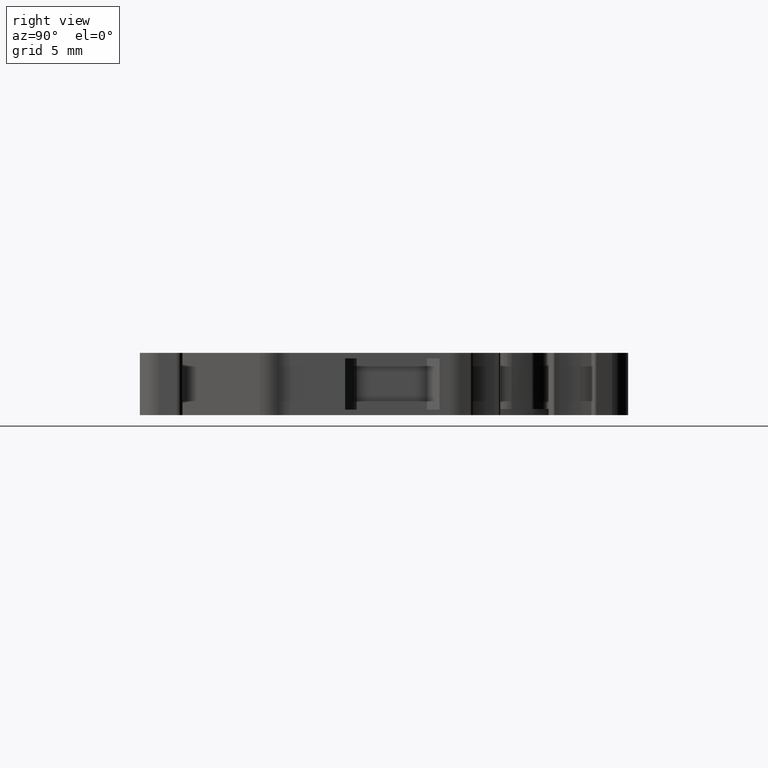
[diagram: clean part render]
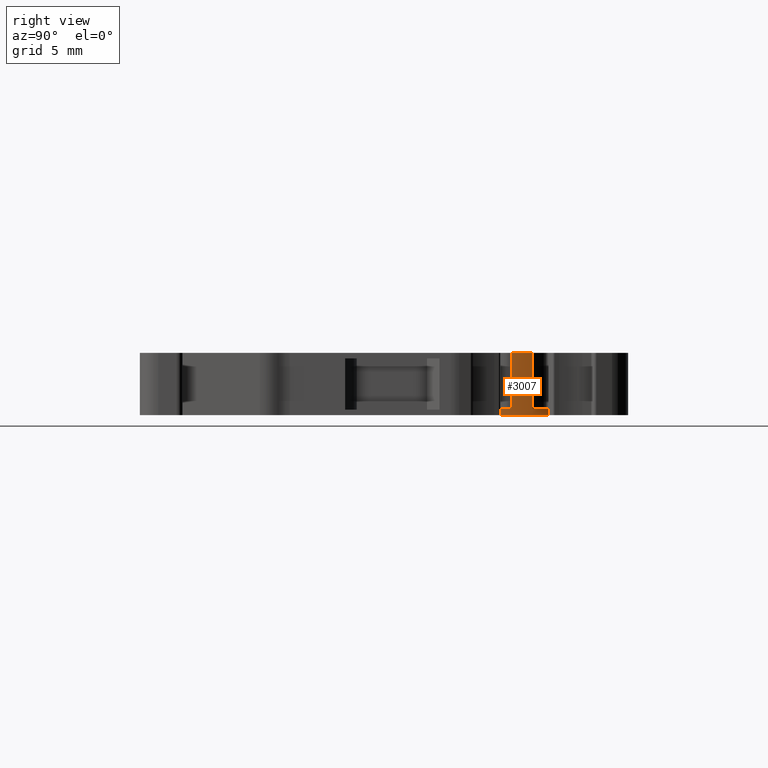
[diagram: same view with one face highlighted and labeled with its STEP entity id]
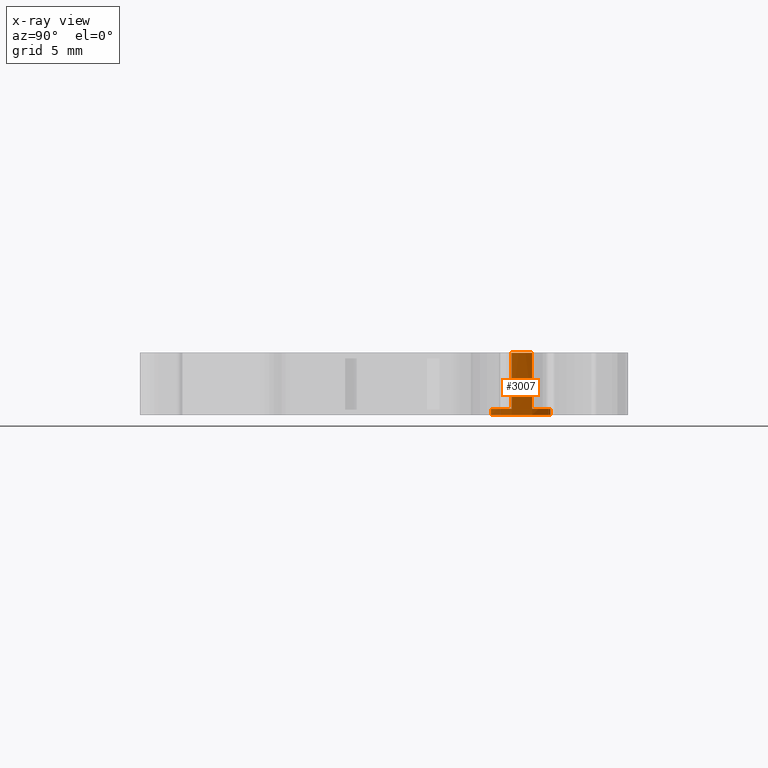
[diagram: x-ray of the same camera — body ghosted, the highlighted face saturated]
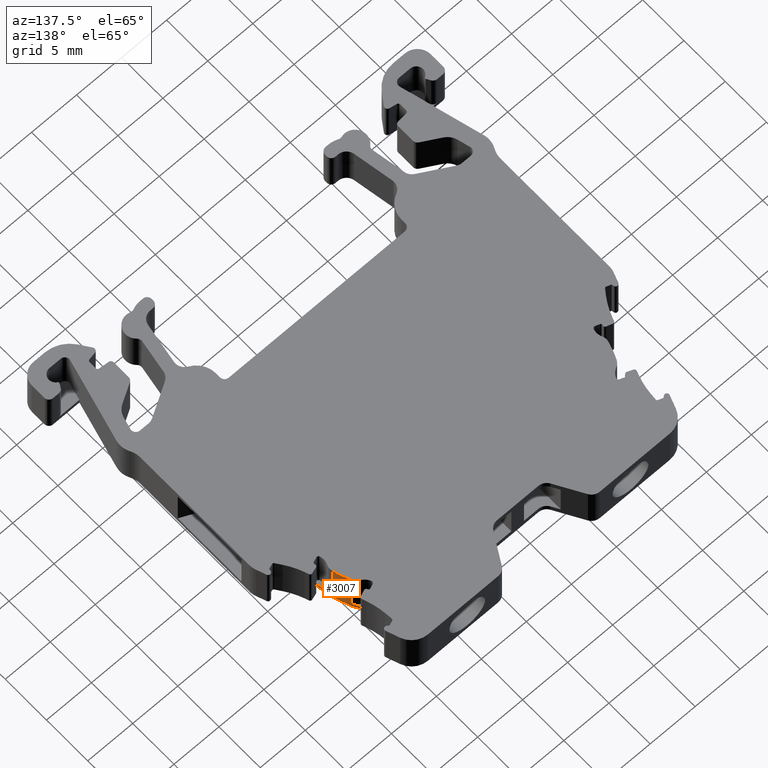
[diagram: same view with one face highlighted and labeled with its STEP entity id]
A machine part, right view. The second image highlights one B-rep face of the part: STEP entity #3007.
The next image is the same camera in x-ray: the body ghosted, the highlighted face saturated — about 0% of this face is hidden behind the body in this view.
A second angle (auxiliary view) of the same face is appended — the face is thin or edge-on in the first view.
In plain terms, the highlighted cylindrical surface (partial cylindrical patch) has radius 10 mm, axis along (0, 0, 1).
Its self-contained STEP definition (entity closure, byte-faithful):
#196 = ORIENTED_EDGE ( 'NONE', *, *, #3202, .F. ) ;
#206 = ORIENTED_EDGE ( 'NONE', *, *, #3743, .T. ) ;
#208 = ORIENTED_EDGE ( 'NONE', *, *, #3230, .T. ) ;
#210 = ORIENTED_EDGE ( 'NONE', *, *, #3704, .T. ) ;
#261 = ORIENTED_EDGE ( 'NONE', *, *, #3126, .T. ) ;
#292 = ORIENTED_EDGE ( 'NONE', *, *, #3696, .T. ) ;
#307 = ORIENTED_EDGE ( 'NONE', *, *, #3066, .T. ) ;
#311 = ORIENTED_EDGE ( 'NONE', *, *, #3752, .T. ) ;
#758 = EDGE_LOOP ( 'NONE', ( #307, #206, #292, #196, #261, #208, #311, #210 ) ) ;
#832 = VERTEX_POINT ( 'NONE', #6879 ) ;
#857 = VERTEX_POINT ( 'NONE', #6864 ) ;
#858 = VERTEX_POINT ( 'NONE', #6845 ) ;
#875 = VERTEX_POINT ( 'NONE', #6836 ) ;
#1222 = VERTEX_POINT ( 'NONE', #5985 ) ;
#1240 = VERTEX_POINT ( 'NONE', #6007 ) ;
#1258 = VERTEX_POINT ( 'NONE', #6006 ) ;
#1261 = VERTEX_POINT ( 'NONE', #6010 ) ;
#1778 = LINE ( 'NONE', #1787, #8613 ) ;
#1787 = CARTESIAN_POINT ( 'NONE',  ( 1474.032254016908400, 951.1169505302278800, -48.79999999999999700 ) ) ;
#1788 = DIRECTION ( 'NONE',  ( 0.0000000000000000000, 0.0000000000000000000, 1.000000000000000000 ) ) ;
#2769 = DIRECTION ( 'NONE',  ( 0.0000000000000000000, 0.0000000000000000000, 1.000000000000000000 ) ) ;
#2774 = LINE ( 'NONE', #2777, #8516 ) ;
#2777 = CARTESIAN_POINT ( 'NONE',  ( 1475.814780077720600, 946.2196139477476900, -48.79999999999999700 ) ) ;
#3007 = ADVANCED_FACE ( 'NONE', ( #7349 ), #7355, .T. ) ;
#3066 = EDGE_CURVE ( 'NONE', #1261, #1222, #8319, .T. ) ;
#3126 = EDGE_CURVE ( 'NONE', #858, #875, #8399, .T. ) ;
#3202 = EDGE_CURVE ( 'NONE', #858, #832, #2774, .T. ) ;
#3230 = EDGE_CURVE ( 'NONE', #875, #857, #1778, .T. ) ;
#3696 = EDGE_CURVE ( 'NONE', #1240, #832, #7369, .T. ) ;
#3704 = EDGE_CURVE ( 'NONE', #1258, #1261, #4529, .T. ) ;
#3743 = EDGE_CURVE ( 'NONE', #1222, #1240, #4585, .T. ) ;
#3752 = EDGE_CURVE ( 'NONE', #857, #1258, #7490, .T. ) ;
#4451 = CARTESIAN_POINT ( 'NONE',  ( 1465.851264466720100, 945.3661758015759900, -47.55000000000000400 ) ) ;
#4452 = DIRECTION ( 'NONE',  ( -0.0000000000000000000, -0.0000000000000000000, -1.000000000000000000 ) ) ;
#4470 = DIRECTION ( 'NONE',  ( 1.000000000000000000, -1.443289932012670200E-013, 0.0000000000000000000 ) ) ;
#4525 = CARTESIAN_POINT ( 'NONE',  ( 1474.904638512022800, 949.6131062690833500, -48.79999999999999700 ) ) ;
#4529 = LINE ( 'NONE', #4525, #7293 ) ;
#4534 = DIRECTION ( 'NONE',  ( 0.0000000000000000000, 0.0000000000000000000, 1.000000000000000000 ) ) ;
#4585 = LINE ( 'NONE', #4592, #7453 ) ;
#4592 = CARTESIAN_POINT ( 'NONE',  ( 1475.516388011033100, 947.9323766653377600, -48.79999999999999700 ) ) ;
#4605 = DIRECTION ( 'NONE',  ( -0.0000000000000000000, -0.0000000000000000000, -1.000000000000000000 ) ) ;
#4651 = DIRECTION ( 'NONE',  ( -0.0000000000000000000, -0.0000000000000000000, -1.000000000000000000 ) ) ;
#4660 = DIRECTION ( 'NONE',  ( 1.000000000000000000, -1.998401444325235600E-013, 0.0000000000000000000 ) ) ;
#4666 = CARTESIAN_POINT ( 'NONE',  ( 1465.851264466720100, 945.3661758015759900, -47.55000000000000400 ) ) ;
#5985 = CARTESIAN_POINT ( 'NONE',  ( 1475.516387923354400, 947.9323769955636900, -42.94999999999999600 ) ) ;
#6006 = CARTESIAN_POINT ( 'NONE',  ( 1474.904638512022800, 949.6131062690833500, -47.55000000000000400 ) ) ;
#6007 = CARTESIAN_POINT ( 'NONE',  ( 1475.516387923354400, 947.9323769955636900, -47.55000000000000400 ) ) ;
#6010 = CARTESIAN_POINT ( 'NONE',  ( 1474.904638512022800, 949.6131062690831200, -42.94999999999999600 ) ) ;
#6836 = CARTESIAN_POINT ( 'NONE',  ( 1474.032254016908400, 951.1169505302278800, -48.05000000000000400 ) ) ;
#6845 = CARTESIAN_POINT ( 'NONE',  ( 1475.814780077720800, 946.2196139477476900, -48.05000000000000400 ) ) ;
#6864 = CARTESIAN_POINT ( 'NONE',  ( 1474.032254016908600, 951.1169505302280000, -47.55000000000000400 ) ) ;
#6879 = CARTESIAN_POINT ( 'NONE',  ( 1475.814780077720800, 946.2196139477478000, -47.55000000000000400 ) ) ;
#7293 = VECTOR ( 'NONE', #4534, 1000.000000000000000 ) ;
#7302 = DIRECTION ( 'NONE',  ( 0.0000000000000000000, 0.0000000000000000000, 1.000000000000000000 ) ) ;
#7343 = DIRECTION ( 'NONE',  ( 1.000000000000000000, 0.0000000000000000000, 0.0000000000000000000 ) ) ;
#7345 = CARTESIAN_POINT ( 'NONE',  ( 1465.851264466720100, 945.3661758015759900, -48.79999999999999700 ) ) ;
#7349 = FACE_OUTER_BOUND ( 'NONE', #758, .T. ) ;
#7355 = CYLINDRICAL_SURFACE ( 'NONE', #8187, 10.00000000000023100 ) ;
#7369 = CIRCLE ( 'NONE', #7371, 10.00000000000023100 ) ;
#7371 = AXIS2_PLACEMENT_3D ( 'NONE', #4451, #4452, #4470 ) ;
#7422 = AXIS2_PLACEMENT_3D ( 'NONE', #4666, #4651, #4660 ) ;
#7453 = VECTOR ( 'NONE', #4605, 1000.000000000000000 ) ;
#7490 = CIRCLE ( 'NONE', #7422, 10.00000000000023100 ) ;
#7736 = DIRECTION ( 'NONE',  ( 1.000000000000000000, -1.110223024625131000E-014, 0.0000000000000000000 ) ) ;
#7739 = DIRECTION ( 'NONE',  ( -0.0000000000000000000, -0.0000000000000000000, -1.000000000000000000 ) ) ;
#7742 = CARTESIAN_POINT ( 'NONE',  ( 1465.851264466720100, 945.3661758015759900, -42.94999999999999600 ) ) ;
#8094 = DIRECTION ( 'NONE',  ( 0.0000000000000000000, 0.0000000000000000000, 1.000000000000000000 ) ) ;
#8128 = CARTESIAN_POINT ( 'NONE',  ( 1465.851264466720100, 945.3661758015759900, -48.05000000000000400 ) ) ;
#8140 = DIRECTION ( 'NONE',  ( 1.000000000000000000, 0.0000000000000000000, 0.0000000000000000000 ) ) ;
#8187 = AXIS2_PLACEMENT_3D ( 'NONE', #7345, #7302, #7343 ) ;
#8272 = AXIS2_PLACEMENT_3D ( 'NONE', #7742, #7739, #7736 ) ;
#8319 = CIRCLE ( 'NONE', #8272, 10.00000000000023100 ) ;
#8340 = AXIS2_PLACEMENT_3D ( 'NONE', #8128, #8094, #8140 ) ;
#8399 = CIRCLE ( 'NONE', #8340, 10.00000000000023100 ) ;
#8516 = VECTOR ( 'NONE', #2769, 1000.000000000000000 ) ;
#8613 = VECTOR ( 'NONE', #1788, 1000.000000000000000 ) ;